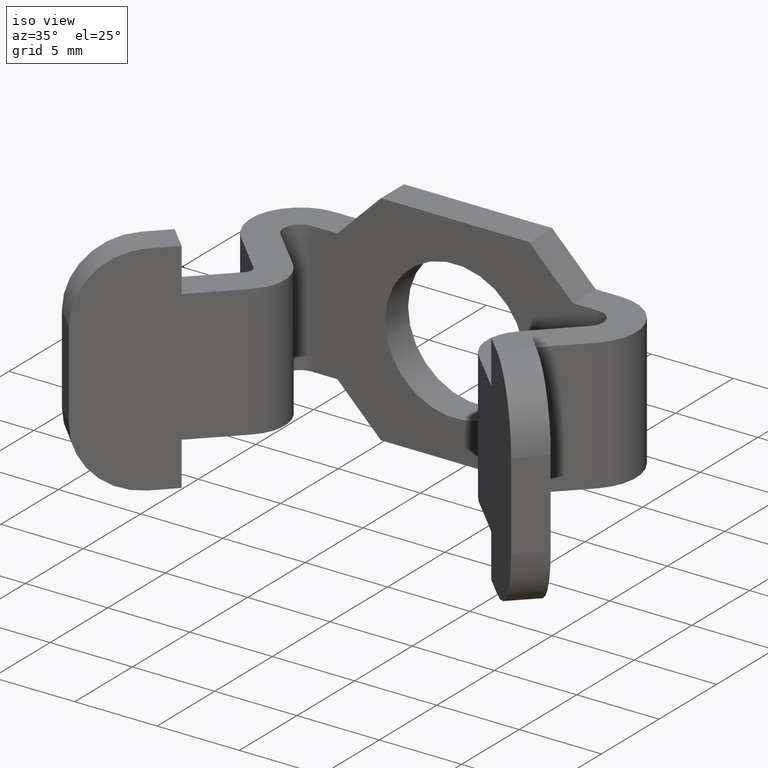
[diagram: clean part render]
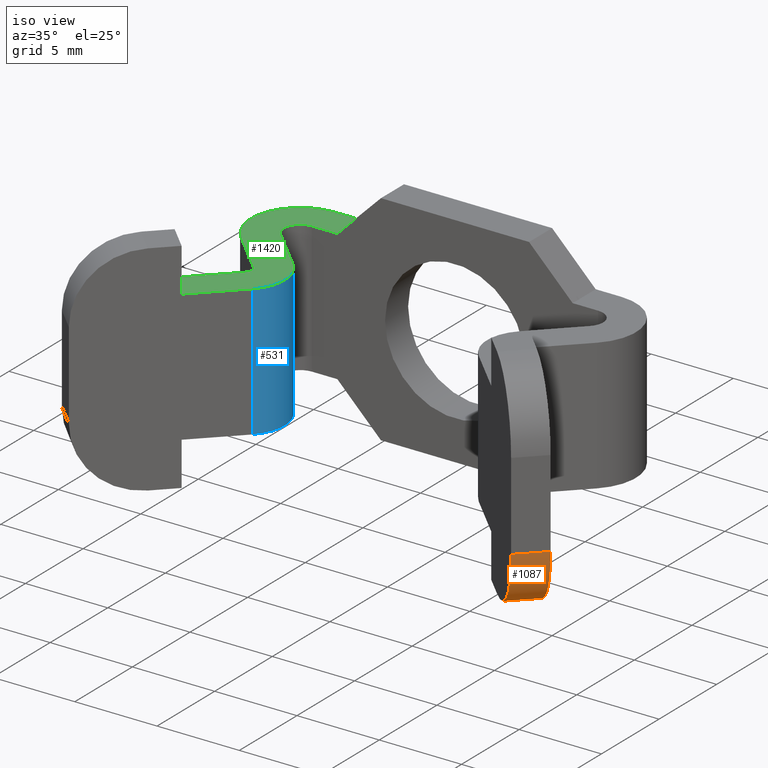
[diagram: same view with three faces highlighted in distinct colors, each labeled with its STEP entity id]
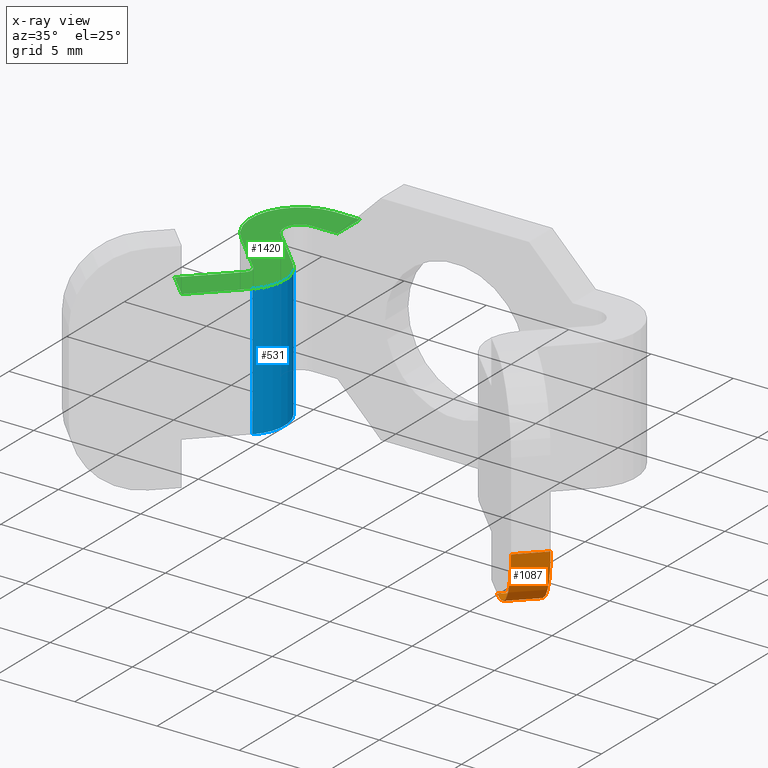
[diagram: x-ray of the same camera — body ghosted, the three highlighted faces saturated]
A machine part, iso view with three faces highlighted in distinct colors.
The next image is the same camera in x-ray (body ghosted, the three faces saturated) — at least one of them is partly hidden behind the body in this view.
Their STEP definitions:

[orange] entity #1087 — the highlighted cylindrical surface (partial cylindrical patch) has radius 4 mm, axis along (0.7071, 0.7071, -0).
#1030=CARTESIAN_POINT('',(10.609188312841070,-13.494974437473047,-6.649999999973716));
#1031=VERTEX_POINT('',#1030);
#1038=CARTESIAN_POINT('',(13.437615437548629,-16.323401562257914,-2.649999999973812));
#1039=VERTEX_POINT('',#1038);
#1040=CARTESIAN_POINT('',(10.609188312841072,-13.494974437472592,-2.649999999973716));
#1041=DIRECTION('',(0.707106781196268,0.707106781176827,-5.835993E-027));
#1042=DIRECTION('',(0.707106781176827,-0.707106781196268,-2.420286E-014));
#1043=AXIS2_PLACEMENT_3D('',#1040,#1041,#1042);
#1044=CIRCLE('',#1043,4.000000000000354);
#1045=EDGE_CURVE('',#1039,#1031,#1044,.T.);
#1056=CARTESIAN_POINT('',(12.023401875233503,-12.080760875118813,-2.649999999973716));
#1057=DIRECTION('',(0.707106781196268,0.707106781176827,-5.835993E-027));
#1058=DIRECTION('',(0.707106781176827,-0.707106781196268,-2.420286E-014));
#1059=AXIS2_PLACEMENT_3D('',#1056,#1057,#1058);
#1060=CYLINDRICAL_SURFACE('',#1059,4.000000000000354);
#1061=CARTESIAN_POINT('',(14.851828999941063,-14.909187999904134,-2.649999999973812));
#1062=VERTEX_POINT('',#1061);
#1063=CARTESIAN_POINT('',(14.851828999941063,-14.909187999904134,-2.649999999973812));
#1064=DIRECTION('',(-0.707106781196211,-0.707106781176884,0.0));
#1065=VECTOR('',#1064,2.000000000000016);
#1066=LINE('',#1063,#1065);
#1067=EDGE_CURVE('',#1062,#1039,#1066,.T.);
#1068=ORIENTED_EDGE('',*,*,#1067,.T.);
#1069=ORIENTED_EDGE('',*,*,#1045,.T.);
#1070=CARTESIAN_POINT('',(12.023401875233503,-12.080760875118813,-6.649999999973716));
#1071=VERTEX_POINT('',#1070);
#1072=CARTESIAN_POINT('',(12.023401875233503,-12.080760875118813,-6.649999999973716));
#1073=DIRECTION('',(-0.707106781196097,-0.707106781176998,0.0));
#1074=VECTOR('',#1073,2.000000000000338);
#1075=LINE('',#1072,#1074);
#1076=EDGE_CURVE('',#1071,#1031,#1075,.T.);
#1077=ORIENTED_EDGE('',*,*,#1076,.F.);
#1078=CARTESIAN_POINT('',(12.023401875233501,-12.080760875118811,-2.649999999973716));
#1079=DIRECTION('',(0.707106781196268,0.707106781176827,-5.835993E-027));
#1080=DIRECTION('',(0.707106781176827,-0.707106781196268,-2.420286E-014));
#1081=AXIS2_PLACEMENT_3D('',#1078,#1079,#1080);
#1082=CIRCLE('',#1081,4.000000000000354);
#1083=EDGE_CURVE('',#1062,#1071,#1082,.T.);
#1084=ORIENTED_EDGE('',*,*,#1083,.F.);
#1085=EDGE_LOOP('',(#1068,#1069,#1077,#1084));
#1086=FACE_OUTER_BOUND('',#1085,.T.);
#1087=ADVANCED_FACE('',(#1086),#1060,.T.);

[blue] entity #531 — the highlighted cylindrical surface (partial cylindrical patch) has radius 2.5 mm, axis along (0, 0, -1).
#474=CARTESIAN_POINT('',(-6.881980328074405,-6.232233547079886,3.999999999983029));
#475=VERTEX_POINT('',#474);
#482=CARTESIAN_POINT('',(-6.881980328074405,-6.232233547079886,-3.999999999984381));
#483=VERTEX_POINT('',#482);
#484=CARTESIAN_POINT('',(-6.881980328074405,-6.232233547079886,-3.999999999984381));
#485=DIRECTION('',(0.0,0.0,1.0));
#486=VECTOR('',#485,7.999999999967409);
#487=LINE('',#484,#486);
#488=EDGE_CURVE('',#483,#475,#487,.T.);
#499=CARTESIAN_POINT('',(-8.649746999965373,-7.999999999932243,-6.649999999973716));
#500=DIRECTION('',(0.0,0.0,-1.0));
#501=DIRECTION('',(0.707106824994226,0.707106737378867,0.0));
#502=AXIS2_PLACEMENT_3D('',#499,#500,#501);
#503=CYLINDRICAL_SURFACE('',#502,2.499999447615652);
#504=ORIENTED_EDGE('',*,*,#488,.T.);
#505=CARTESIAN_POINT('',(-6.881980437593938,-9.767766562303223,3.999999999982908));
#506=VERTEX_POINT('',#505);
#507=CARTESIAN_POINT('',(-8.649746999965375,-7.999999999932244,3.999999999982970));
#508=DIRECTION('',(0.0,0.0,-1.000000000000000));
#509=DIRECTION('',(0.707106781186548,-0.707106781186548,0.0));
#510=AXIS2_PLACEMENT_3D('',#507,#508,#509);
#511=CIRCLE('',#510,2.499999447615652);
#512=EDGE_CURVE('',#475,#506,#511,.T.);
#513=ORIENTED_EDGE('',*,*,#512,.T.);
#514=CARTESIAN_POINT('',(-6.881980437593938,-9.767766562303223,-3.999999999984501));
#515=VERTEX_POINT('',#514);
#516=CARTESIAN_POINT('',(-6.881980437593938,-9.767766562303223,-3.999999999984501));
#517=DIRECTION('',(0.0,0.0,1.0));
#518=VECTOR('',#517,7.999999999967409);
#519=LINE('',#516,#518);
#520=EDGE_CURVE('',#515,#506,#519,.T.);
#521=ORIENTED_EDGE('',*,*,#520,.F.);
#522=CARTESIAN_POINT('',(-8.649746999965375,-7.999999999932244,-3.999999999984443));
#523=DIRECTION('',(0.0,0.0,1.000000000000000));
#524=DIRECTION('',(0.707106781186548,-0.707106781186548,0.0));
#525=AXIS2_PLACEMENT_3D('',#522,#523,#524);
#526=CIRCLE('',#525,2.499999447615652);
#527=EDGE_CURVE('',#515,#483,#526,.T.);
#528=ORIENTED_EDGE('',*,*,#527,.T.);
#529=EDGE_LOOP('',(#504,#513,#521,#528));
#530=FACE_OUTER_BOUND('',#529,.T.);
#531=ADVANCED_FACE('',(#530),#503,.T.);

[green] entity #1420 — the highlighted planar face has unit normal (0, 0, 1).
#18=CARTESIAN_POINT('',(-8.296193999966818,-8.353552999930798,3.999999999982958));
#19=VERTEX_POINT('',#18);
#26=CARTESIAN_POINT('',(-8.296193978062547,-7.646447021836593,3.999999999982983));
#27=VERTEX_POINT('',#26);
#28=CARTESIAN_POINT('',(-8.649746999965375,-7.999999999932244,3.999999999982970));
#29=DIRECTION('',(0.0,0.0,1.000000000000000));
#30=DIRECTION('',(0.707106781186548,-0.707106781186548,0.0));
#31=AXIS2_PLACEMENT_3D('',#28,#29,#30);
#32=CIRCLE('',#31,0.499999447615652);
#33=EDGE_CURVE('',#19,#27,#32,.T.);
#50=CARTESIAN_POINT('',(-10.821320343380194,-5.121320343639582,3.999999999983068));
#51=VERTEX_POINT('',#50);
#52=CARTESIAN_POINT('',(-8.296193978062547,-7.646447021836593,3.999999999982983));
#53=DIRECTION('',(-0.707106737379014,0.707106824994078,2.387665E-014));
#54=VECTOR('',#53,3.571068173777222);
#55=LINE('',#52,#54);
#56=EDGE_CURVE('',#27,#51,#55,.T.);
#90=CARTESIAN_POINT('',(-8.699999813927207,0.0,3.999999999983755));
#91=VERTEX_POINT('',#90);
#92=CARTESIAN_POINT('',(-8.699999813927663,-3.000000077032837,3.999999999983142));
#93=DIRECTION('',(0.0,0.0,-1.000000000000000));
#94=DIRECTION('',(-0.707106824994176,-0.707106737378916,0.0));
#95=AXIS2_PLACEMENT_3D('',#92,#93,#94);
#96=CIRCLE('',#95,3.000000077032213);
#97=EDGE_CURVE('',#51,#91,#96,.T.);
#162=CARTESIAN_POINT('',(-7.149999999970987,4.547474E-013,3.999999999983753));
#163=VERTEX_POINT('',#162);
#164=CARTESIAN_POINT('',(-7.149999999970987,4.547474E-013,3.999999999983753));
#165=DIRECTION('',(-1.0,0.0,0.0));
#166=VECTOR('',#165,1.549999813956219);
#167=LINE('',#164,#166);
#168=EDGE_CURVE('',#163,#91,#167,.T.);
#433=CARTESIAN_POINT('',(-8.699999813927661,-2.000000000000455,3.999999999983684));
#434=VERTEX_POINT('',#433);
#441=CARTESIAN_POINT('',(-9.407106693390688,-3.707106868881965,3.999999999983116));
#442=VERTEX_POINT('',#441);
#443=CARTESIAN_POINT('',(-8.699999813927663,-3.000000077032837,3.999999999983652));
#444=DIRECTION('',(0.0,0.0,1.000000000000000));
#445=DIRECTION('',(-0.707106824994176,-0.707106737378916,0.0));
#446=AXIS2_PLACEMENT_3D('',#443,#444,#445);
#447=CIRCLE('',#446,1.000000077032213);
#448=EDGE_CURVE('',#434,#442,#447,.T.);
#474=CARTESIAN_POINT('',(-6.881980328074405,-6.232233547079886,3.999999999983029));
#475=VERTEX_POINT('',#474);
#476=CARTESIAN_POINT('',(-9.407106693390688,-3.707106868881965,3.999999999983116));
#477=DIRECTION('',(0.707106737378696,-0.707106824994396,-2.437408E-014));
#478=VECTOR('',#477,3.571068173776900);
#479=LINE('',#476,#478);
#480=EDGE_CURVE('',#442,#475,#479,.T.);
#505=CARTESIAN_POINT('',(-6.881980437593938,-9.767766562303223,3.999999999982908));
#506=VERTEX_POINT('',#505);
#507=CARTESIAN_POINT('',(-8.649746999965375,-7.999999999932244,3.999999999982970));
#508=DIRECTION('',(0.0,0.0,-1.000000000000000));
#509=DIRECTION('',(0.707106781186548,-0.707106781186548,0.0));
#510=AXIS2_PLACEMENT_3D('',#507,#508,#509);
#511=CIRCLE('',#510,2.499999447615652);
#512=EDGE_CURVE('',#475,#506,#511,.T.);
#647=CARTESIAN_POINT('',(-7.149999999970987,-2.0,3.999999999983684));
#648=VERTEX_POINT('',#647);
#649=CARTESIAN_POINT('',(-7.149999999970987,4.547474E-013,3.999999999983753));
#650=DIRECTION('',(0.0,-1.0,0.0));
#651=VECTOR('',#650,2.000000000000455);
#652=LINE('',#649,#651);
#653=EDGE_CURVE('',#163,#648,#652,.T.);
#746=CARTESIAN_POINT('',(-8.699999813927661,-2.000000000000455,3.999999999983684));
#747=DIRECTION('',(1.0,2.933854E-013,0.0));
#748=VECTOR('',#747,1.549999813956674);
#749=LINE('',#746,#748);
#750=EDGE_CURVE('',#434,#648,#749,.T.);
#793=CARTESIAN_POINT('',(-10.821320562314668,-10.878679562279103,3.999999999982871));
#794=VERTEX_POINT('',#793);
#801=CARTESIAN_POINT('',(-8.296193999966818,-8.353552999930798,3.999999999982958));
#802=DIRECTION('',(-0.707106781186484,-0.707106781186611,-2.437408E-014));
#803=VECTOR('',#802,3.571068231181202);
#804=LINE('',#801,#803);
#805=EDGE_CURVE('',#19,#794,#804,.T.);
#911=CARTESIAN_POINT('',(-9.407106999942698,-12.292893124651982,3.999999999982871));
#912=VERTEX_POINT('',#911);
#913=CARTESIAN_POINT('',(-6.881980437593938,-9.767766562303223,3.999999999982908));
#914=DIRECTION('',(-0.707106781186548,-0.707106781186548,-1.044603E-014));
#915=VECTOR('',#914,3.571068231182167);
#916=LINE('',#913,#915);
#917=EDGE_CURVE('',#506,#912,#916,.T.);
#1391=CARTESIAN_POINT('',(-10.821320562315123,-10.878679562279103,3.999999999982871));
#1392=DIRECTION('',(0.707106781186396,-0.707106781186699,0.0));
#1393=VECTOR('',#1392,1.999999999999405);
#1394=LINE('',#1391,#1393);
#1395=EDGE_CURVE('',#794,#912,#1394,.T.);
#1401=CARTESIAN_POINT('',(-6.147235624267978,0.002539276735206,3.999999999983753));
#1402=DIRECTION('',(0.0,0.0,1.0));
#1403=DIRECTION('',(-1.0,0.0,0.0));
#1404=AXIS2_PLACEMENT_3D('',#1401,#1402,#1403);
#1405=PLANE('',#1404);
#1406=ORIENTED_EDGE('',*,*,#168,.T.);
#1407=ORIENTED_EDGE('',*,*,#97,.F.);
#1408=ORIENTED_EDGE('',*,*,#56,.F.);
#1409=ORIENTED_EDGE('',*,*,#33,.F.);
#1410=ORIENTED_EDGE('',*,*,#805,.T.);
#1411=ORIENTED_EDGE('',*,*,#1395,.T.);
#1412=ORIENTED_EDGE('',*,*,#917,.F.);
#1413=ORIENTED_EDGE('',*,*,#512,.F.);
#1414=ORIENTED_EDGE('',*,*,#480,.F.);
#1415=ORIENTED_EDGE('',*,*,#448,.F.);
#1416=ORIENTED_EDGE('',*,*,#750,.T.);
#1417=ORIENTED_EDGE('',*,*,#653,.F.);
#1418=EDGE_LOOP('',(#1406,#1407,#1408,#1409,#1410,#1411,#1412,#1413,#1414,#1415,#1416,#1417));
#1419=FACE_OUTER_BOUND('',#1418,.T.);
#1420=ADVANCED_FACE('',(#1419),#1405,.T.);